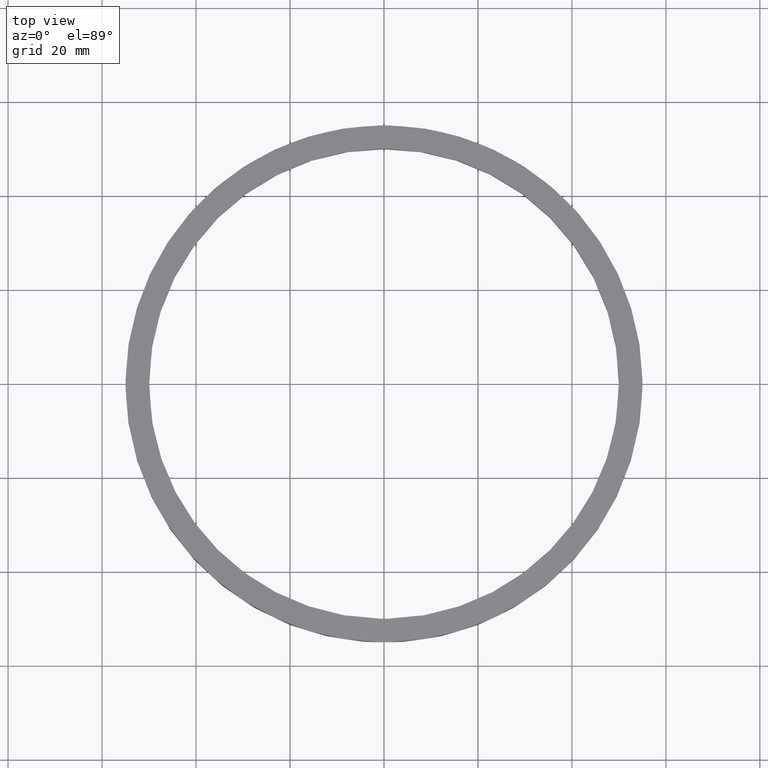
[diagram: clean part render]
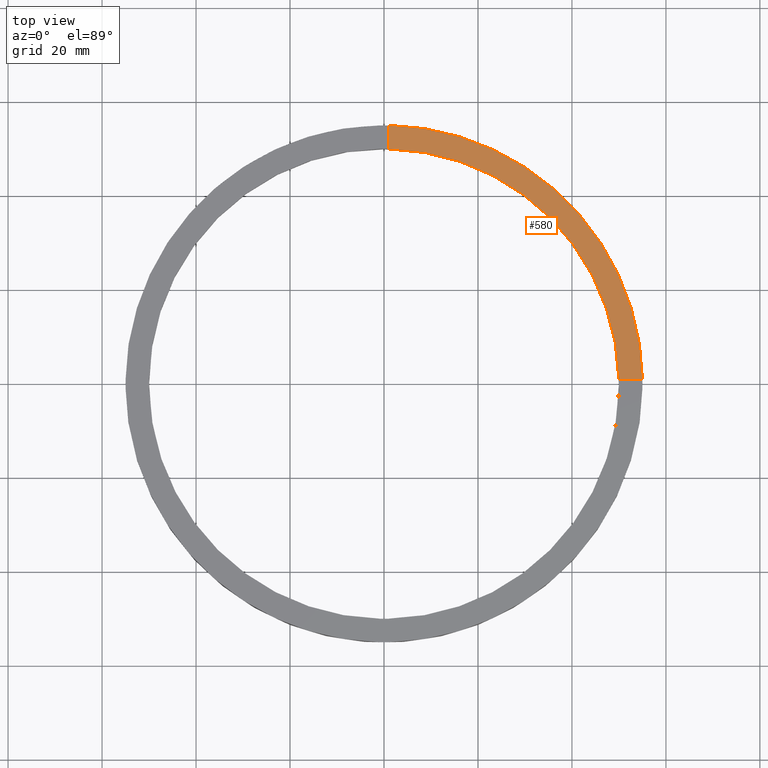
[diagram: same view with one face highlighted and labeled with its STEP entity id]
A machine part, top view. The second image highlights one B-rep face of the part: STEP entity #580.
In plain terms, the highlighted planar face has unit normal (0, 0, 1).
Its self-contained STEP definition (entity closure, byte-faithful):
#5 = AXIS2_PLACEMENT_3D ( 'NONE', #548, #639, #750 ) ;
#6 = CARTESIAN_POINT ( 'NONE',  ( 49.98999899979995831, 0.9999999999998454570, 5.500000000000000000 ) ) ;
#14 = CARTESIAN_POINT ( 'NONE',  ( 54.99090833947008150, 0.9999999999998459010, 5.500000000000000000 ) ) ;
#74 = AXIS2_PLACEMENT_3D ( 'NONE', #631, #731, #265 ) ;
#96 = DIRECTION ( 'NONE',  ( 1.000000000000000000, 0.000000000000000000, -0.000000000000000000 ) ) ;
#107 = VECTOR ( 'NONE', #360, 1000.000000000000000 ) ;
#123 = CIRCLE ( 'NONE', #5, 50.00000000000000000 ) ;
#149 = ORIENTED_EDGE ( 'NONE', *, *, #506, .F. ) ;
#153 = AXIS2_PLACEMENT_3D ( 'NONE', #189, #322, #96 ) ;
#187 = VERTEX_POINT ( 'NONE', #242 ) ;
#189 = CARTESIAN_POINT ( 'NONE',  ( 0.000000000000000000, 0.000000000000000000, 5.500000000000000000 ) ) ;
#199 = VERTEX_POINT ( 'NONE', #6 ) ;
#242 = CARTESIAN_POINT ( 'NONE',  ( 0.9999999999999726885, 49.98999899979995121, 5.500000000000000000 ) ) ;
#265 = DIRECTION ( 'NONE',  ( 1.000000000000000000, 0.000000000000000000, 0.000000000000000000 ) ) ;
#315 = PLANE ( 'NONE',  #153 ) ;
#322 = DIRECTION ( 'NONE',  ( 0.000000000000000000, 0.000000000000000000, 1.000000000000000000 ) ) ;
#360 = DIRECTION ( 'NONE',  ( 0.000000000000000000, 1.000000000000000000, 0.000000000000000000 ) ) ;
#365 = CARTESIAN_POINT ( 'NONE',  ( 0.9999999999999726885, 54.99090833947007440, 5.500000000000000000 ) ) ;
#410 = LINE ( 'NONE', #547, #663 ) ;
#436 = DIRECTION ( 'NONE',  ( -1.000000000000000000, -8.673617379884034239E-17, -0.000000000000000000 ) ) ;
#440 = EDGE_LOOP ( 'NONE', ( #149, #706, #446, #483 ) ) ;
#446 = ORIENTED_EDGE ( 'NONE', *, *, #694, .F. ) ;
#483 = ORIENTED_EDGE ( 'NONE', *, *, #601, .T. ) ;
#490 = VERTEX_POINT ( 'NONE', #14 ) ;
#506 = EDGE_CURVE ( 'NONE', #187, #714, #635, .T. ) ;
#547 = CARTESIAN_POINT ( 'NONE',  ( 44.99999999999999289, 0.9999999999998450129, 5.500000000000000000 ) ) ;
#548 = CARTESIAN_POINT ( 'NONE',  ( 0.000000000000000000, 0.000000000000000000, 5.500000000000000000 ) ) ;
#563 = EDGE_CURVE ( 'NONE', #199, #187, #123, .T. ) ;
#580 = ADVANCED_FACE ( 'NONE', ( #633 ), #315, .T. ) ;
#601 = EDGE_CURVE ( 'NONE', #490, #714, #674, .T. ) ;
#631 = CARTESIAN_POINT ( 'NONE',  ( 0.000000000000000000, 0.000000000000000000, 5.500000000000000000 ) ) ;
#632 = CARTESIAN_POINT ( 'NONE',  ( 0.9999999999999726885, 45.00000000000000000, 5.500000000000000000 ) ) ;
#633 = FACE_OUTER_BOUND ( 'NONE', #440, .T. ) ;
#635 = LINE ( 'NONE', #632, #107 ) ;
#639 = DIRECTION ( 'NONE',  ( 0.000000000000000000, 0.000000000000000000, 1.000000000000000000 ) ) ;
#663 = VECTOR ( 'NONE', #436, 1000.000000000000000 ) ;
#674 = CIRCLE ( 'NONE', #74, 55.00000000000000000 ) ;
#694 = EDGE_CURVE ( 'NONE', #490, #199, #410, .T. ) ;
#706 = ORIENTED_EDGE ( 'NONE', *, *, #563, .F. ) ;
#714 = VERTEX_POINT ( 'NONE', #365 ) ;
#731 = DIRECTION ( 'NONE',  ( 0.000000000000000000, 0.000000000000000000, 1.000000000000000000 ) ) ;
#750 = DIRECTION ( 'NONE',  ( 1.000000000000000000, 0.000000000000000000, 0.000000000000000000 ) ) ;